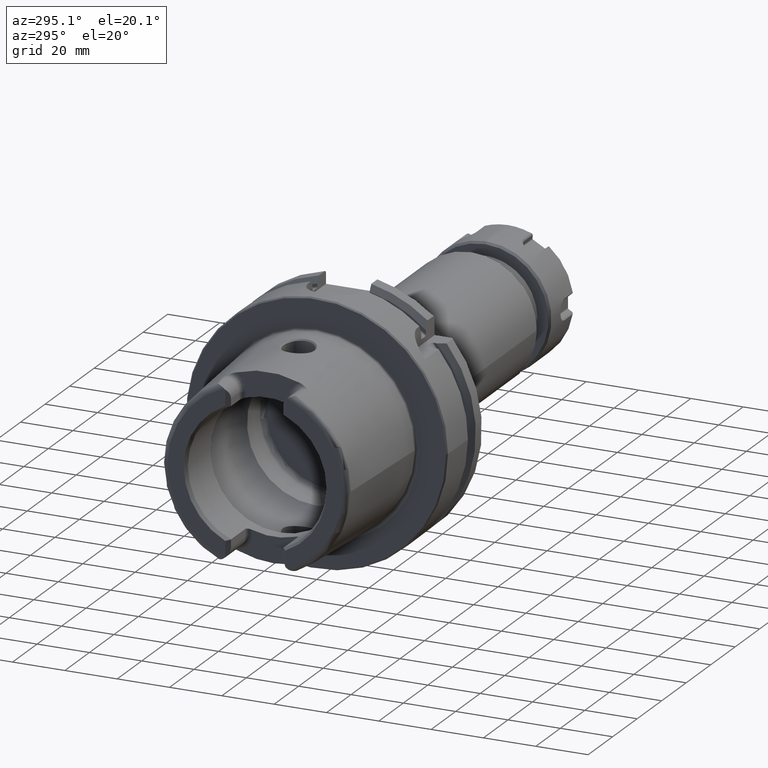
[diagram: clean part render]
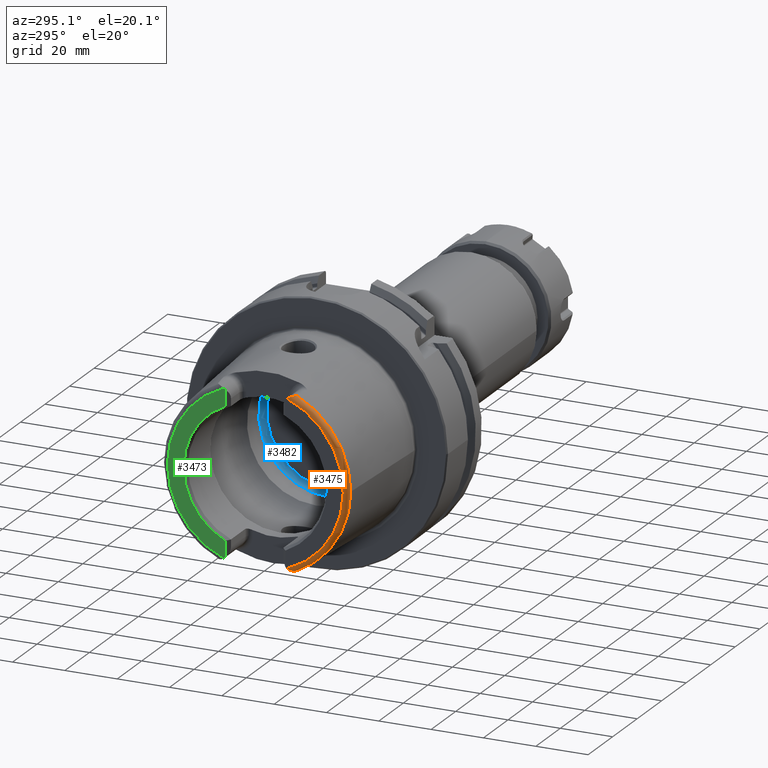
[diagram: same view with three faces highlighted in distinct colors, each labeled with its STEP entity id]
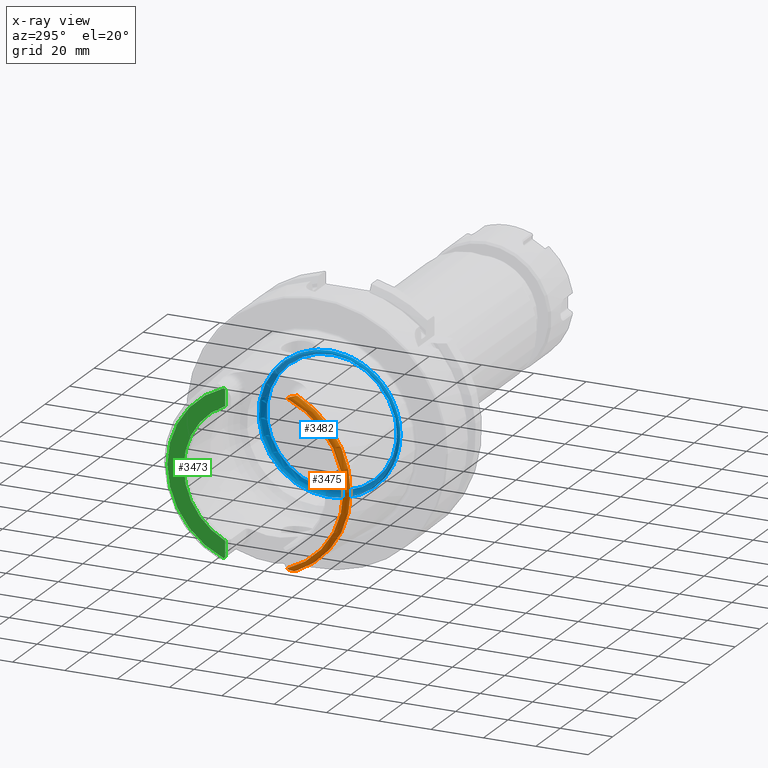
[diagram: x-ray of the same camera — body ghosted, the three highlighted faces saturated]
A machine part, auxiliary view with three faces highlighted in distinct colors.
The next image is the same camera in x-ray (body ghosted, the three faces saturated) — at least one of them is partly hidden behind the body in this view.
Their STEP definitions:

[orange] entity #3475 — the highlighted toroidal blend (fillet) surface has major radius 33.6002 mm and minor (blend) radius 2 mm.
#142=B_SPLINE_CURVE_WITH_KNOTS('',3,(#5247,#5248,#5249,#5250,#5251,#5252,
#5253,#5254,#5255,#5256,#5257,#5258),.UNSPECIFIED.,.F.,.F.,(4,2,2,2,2,4),
(-0.330531435638015,-0.267908000768776,-0.159978118105109,-0.0786368985358203,
-0.0319888850382474,0.),.UNSPECIFIED.);
#143=B_SPLINE_CURVE_WITH_KNOTS('',3,(#5283,#5284,#5285,#5286,#5287,#5288,
#5289,#5290,#5291,#5292,#5293,#5294),.UNSPECIFIED.,.F.,.F.,(4,2,2,2,2,4),
(-0.744571126726488,-0.701342830888658,-0.656522678464695,-0.531122919946982,
-0.40678456724179,-0.320835419118985),.UNSPECIFIED.);
#401=TOROIDAL_SURFACE('',#3865,33.6001839277785,2.);
#511=FACE_OUTER_BOUND('',#722,.T.);
#722=EDGE_LOOP('',(#2789,#2790,#2791,#2792,#2793));
#1263=CIRCLE('',#3739,35.5976786130245);
#1267=CIRCLE('',#3743,35.5976786130245);
#1329=CIRCLE('',#3866,33.6001839277785);
#1470=VERTEX_POINT('',#5227);
#1471=VERTEX_POINT('',#5246);
#1479=VERTEX_POINT('',#5280);
#1480=VERTEX_POINT('',#5282);
#1495=VERTEX_POINT('',#5501);
#1820=EDGE_CURVE('',#1471,#1470,#142,.T.);
#1832=EDGE_CURVE('',#1480,#1479,#143,.T.);
#1852=EDGE_CURVE('',#1495,#1470,#1263,.T.);
#1864=EDGE_CURVE('',#1480,#1495,#1267,.T.);
#2031=EDGE_CURVE('',#1479,#1471,#1329,.T.);
#2789=ORIENTED_EDGE('',*,*,#1832,.T.);
#2790=ORIENTED_EDGE('',*,*,#2031,.T.);
#2791=ORIENTED_EDGE('',*,*,#1820,.T.);
#2792=ORIENTED_EDGE('',*,*,#1852,.F.);
#2793=ORIENTED_EDGE('',*,*,#1864,.F.);
#3475=ADVANCED_FACE('',(#511),#401,.T.);
#3739=AXIS2_PLACEMENT_3D('',#5503,#4259,#4260);
#3743=AXIS2_PLACEMENT_3D('',#5611,#4267,#4268);
#3865=AXIS2_PLACEMENT_3D('',#6494,#4567,#4568);
#3866=AXIS2_PLACEMENT_3D('',#6495,#4569,#4570);
#4259=DIRECTION('center_axis',(1.,0.,0.));
#4260=DIRECTION('ref_axis',(0.,0.,-1.));
#4267=DIRECTION('center_axis',(1.,0.,0.));
#4268=DIRECTION('ref_axis',(0.,0.,-1.));
#4567=DIRECTION('center_axis',(1.,0.,0.));
#4568=DIRECTION('ref_axis',(0.,0.,-1.));
#4569=DIRECTION('center_axis',(1.,0.,0.));
#4570=DIRECTION('ref_axis',(0.,0.,-1.));
#5227=CARTESIAN_POINT('',(-48.1000748840304,-15.0787152148571,-32.2463497175327));
#5246=CARTESIAN_POINT('',(-50.,-12.0743049948301,-31.355757348091));
#5247=CARTESIAN_POINT('Ctrl Pts',(-50.,-12.0743049948301,-31.355757348091));
#5248=CARTESIAN_POINT('Ctrl Pts',(-50.,-12.285838123051,-31.5051926299063));
#5249=CARTESIAN_POINT('Ctrl Pts',(-49.9653696826563,-12.5170331398668,-31.6430588255455));
#5250=CARTESIAN_POINT('Ctrl Pts',(-49.7810065498998,-13.1911222585012,-31.9692156023965));
#5251=CARTESIAN_POINT('Ctrl Pts',(-49.5806767805336,-13.6194685503756,-32.0969374367804));
#5252=CARTESIAN_POINT('Ctrl Pts',(-49.1716377200869,-14.2730899346346,-32.2192774131036));
#5253=CARTESIAN_POINT('Ctrl Pts',(-48.9774936618895,-14.5201969661755,-32.2395201073332));
#5254=CARTESIAN_POINT('Ctrl Pts',(-48.6675943633754,-14.8125911006811,-32.2505512851489));
#5255=CARTESIAN_POINT('Ctrl Pts',(-48.5398374959923,-14.912197389574,-32.2504544601106));
#5256=CARTESIAN_POINT('Ctrl Pts',(-48.3063803700173,-15.0305209025153,-32.2482139663407));
#5257=CARTESIAN_POINT('Ctrl Pts',(-48.2058276135777,-15.0650786147019,-32.2468774553032));
#5258=CARTESIAN_POINT('Ctrl Pts',(-48.1000748840303,-15.0787152148571,-32.2463497175327));
#5280=CARTESIAN_POINT('',(-50.,-12.0743049948301,31.355757348091));
#5282=CARTESIAN_POINT('',(-48.1000748840304,-15.0787152148571,32.2463497175327));
#5283=CARTESIAN_POINT('Ctrl Pts',(-48.1000748840303,-15.078715214857,32.2463497175327));
#5284=CARTESIAN_POINT('Ctrl Pts',(-48.2106037175751,-15.0644627457708,32.2469012894916));
#5285=CARTESIAN_POINT('Ctrl Pts',(-48.3154292138325,-15.0273539899824,32.2483385926998));
#5286=CARTESIAN_POINT('Ctrl Pts',(-48.5163157198425,-14.9224481921473,32.2501843906849));
#5287=CARTESIAN_POINT('Ctrl Pts',(-48.6121978837475,-14.8534224082597,32.2504380645671));
#5288=CARTESIAN_POINT('Ctrl Pts',(-48.9452641842069,-14.5689466462259,32.2439376039327));
#5289=CARTESIAN_POINT('Ctrl Pts',(-49.1880723127851,-14.2607780319836,32.2227822574559));
#5290=CARTESIAN_POINT('Ctrl Pts',(-49.6101150709732,-13.5547183211213,32.0774653757186));
#5291=CARTESIAN_POINT('Ctrl Pts',(-49.7793847368059,-13.1765954395989,31.957165019384));
#5292=CARTESIAN_POINT('Ctrl Pts',(-49.9574602860506,-12.5580264083439,31.6658578550016));
#5293=CARTESIAN_POINT('Ctrl Pts',(-50.,-12.3091419271059,31.5216553492714));
#5294=CARTESIAN_POINT('Ctrl Pts',(-50.,-12.0743049948301,31.355757348091));
#5501=CARTESIAN_POINT('',(-48.1000748840304,-35.5976786130245,-4.35945831705167E-15));
#5503=CARTESIAN_POINT('Origin',(-48.1000748840304,0.,0.));
#5611=CARTESIAN_POINT('Origin',(-48.1000748840304,0.,0.));
#6494=CARTESIAN_POINT('Origin',(-48.,0.,0.));
#6495=CARTESIAN_POINT('Origin',(-50.,0.,0.));

[blue] entity #3482 — the highlighted toroidal blend (fillet) surface has major radius 24.9 mm and minor (blend) radius 2 mm.
#402=TOROIDAL_SURFACE('',#3878,24.9,2.);
#518=FACE_OUTER_BOUND('',#731,.T.);
#731=EDGE_LOOP('',(#2816,#2817,#2818,#2819,#2820));
#1334=CIRCLE('',#3877,24.9);
#1335=CIRCLE('',#3879,2.);
#1336=CIRCLE('',#3880,26.5);
#1337=CIRCLE('',#3881,26.5);
#1608=VERTEX_POINT('',#6510);
#1609=VERTEX_POINT('',#6513);
#1610=VERTEX_POINT('',#6515);
#2037=EDGE_CURVE('',#1608,#1608,#1334,.T.);
#2038=EDGE_CURVE('',#1608,#1609,#1335,.T.);
#2039=EDGE_CURVE('',#1609,#1610,#1336,.T.);
#2040=EDGE_CURVE('',#1610,#1609,#1337,.T.);
#2816=ORIENTED_EDGE('',*,*,#2037,.F.);
#2817=ORIENTED_EDGE('',*,*,#2038,.T.);
#2818=ORIENTED_EDGE('',*,*,#2039,.T.);
#2819=ORIENTED_EDGE('',*,*,#2040,.T.);
#2820=ORIENTED_EDGE('',*,*,#2038,.F.);
#3482=ADVANCED_FACE('',(#518),#402,.F.);
#3877=AXIS2_PLACEMENT_3D('',#6511,#4592,#4593);
#3878=AXIS2_PLACEMENT_3D('',#6512,#4594,#4595);
#3879=AXIS2_PLACEMENT_3D('',#6514,#4596,#4597);
#3880=AXIS2_PLACEMENT_3D('',#6516,#4598,#4599);
#3881=AXIS2_PLACEMENT_3D('',#6517,#4600,#4601);
#4592=DIRECTION('center_axis',(-1.,0.,0.));
#4593=DIRECTION('ref_axis',(0.,0.,1.));
#4594=DIRECTION('center_axis',(-1.,0.,0.));
#4595=DIRECTION('ref_axis',(0.,0.,1.));
#4596=DIRECTION('center_axis',(0.,1.,-1.22464679914735E-16));
#4597=DIRECTION('ref_axis',(0.,-1.22464679914735E-16,-1.));
#4598=DIRECTION('center_axis',(-1.,0.,0.));
#4599=DIRECTION('ref_axis',(0.,0.,1.));
#4600=DIRECTION('center_axis',(-1.,0.,0.));
#4601=DIRECTION('ref_axis',(0.,0.,1.));
#6510=CARTESIAN_POINT('',(12.5,-3.04937052987691E-15,-24.9));
#6511=CARTESIAN_POINT('Origin',(12.5,0.,0.));
#6512=CARTESIAN_POINT('Origin',(10.5,0.,0.));
#6513=CARTESIAN_POINT('',(9.3,-3.24531401774049E-15,-26.5));
#6514=CARTESIAN_POINT('Origin',(10.5,-3.04937052987691E-15,-24.9));
#6515=CARTESIAN_POINT('',(9.3,-26.5,3.24531401774049E-15));
#6516=CARTESIAN_POINT('Origin',(9.3,0.,0.));
#6517=CARTESIAN_POINT('Origin',(9.3,0.,0.));

[green] entity #3473 — the highlighted planar face has unit normal (-1, 0, 0).
#335=PLANE('',#3862);
#509=FACE_OUTER_BOUND('',#720,.T.);
#720=EDGE_LOOP('',(#2779,#2780,#2781,#2782,#2783,#2784));
#864=LINE('',#5162,#1052);
#880=LINE('',#5310,#1068);
#1052=VECTOR('',#4178,10.);
#1068=VECTOR('',#4238,10.);
#1252=CIRCLE('',#3712,4.88);
#1261=CIRCLE('',#3735,4.88);
#1327=CIRCLE('',#3861,27.3660254037844);
#1328=CIRCLE('',#3863,33.6001839277785);
#1451=VERTEX_POINT('',#5155);
#1454=VERTEX_POINT('',#5160);
#1457=VERTEX_POINT('',#5170);
#1483=VERTEX_POINT('',#5307);
#1484=VERTEX_POINT('',#5309);
#1489=VERTEX_POINT('',#5328);
#1801=EDGE_CURVE('',#1454,#1451,#864,.T.);
#1805=EDGE_CURVE('',#1457,#1451,#1252,.T.);
#1836=EDGE_CURVE('',#1483,#1484,#880,.T.);
#1843=EDGE_CURVE('',#1483,#1489,#1261,.T.);
#2029=EDGE_CURVE('',#1484,#1454,#1327,.T.);
#2030=EDGE_CURVE('',#1457,#1489,#1328,.T.);
#2779=ORIENTED_EDGE('',*,*,#1801,.F.);
#2780=ORIENTED_EDGE('',*,*,#2029,.F.);
#2781=ORIENTED_EDGE('',*,*,#1836,.F.);
#2782=ORIENTED_EDGE('',*,*,#1843,.T.);
#2783=ORIENTED_EDGE('',*,*,#2030,.F.);
#2784=ORIENTED_EDGE('',*,*,#1805,.T.);
#3473=ADVANCED_FACE('',(#509),#335,.T.);
#3712=AXIS2_PLACEMENT_3D('',#5171,#4186,#4187);
#3735=AXIS2_PLACEMENT_3D('',#5341,#4247,#4248);
#3861=AXIS2_PLACEMENT_3D('',#6490,#4559,#4560);
#3862=AXIS2_PLACEMENT_3D('',#6491,#4561,#4562);
#3863=AXIS2_PLACEMENT_3D('',#6492,#4563,#4564);
#4178=DIRECTION('',(0.,0.,-1.));
#4186=DIRECTION('center_axis',(-1.,0.,0.));
#4187=DIRECTION('ref_axis',(0.,-0.477884921181368,0.878422450821629));
#4238=DIRECTION('',(0.,0.,-1.));
#4247=DIRECTION('center_axis',(-1.,0.,0.));
#4248=DIRECTION('ref_axis',(0.,1.,0.));
#4559=DIRECTION('center_axis',(-1.,0.,0.));
#4560=DIRECTION('ref_axis',(0.,-1.,0.));
#4561=DIRECTION('center_axis',(-1.,0.,0.));
#4562=DIRECTION('ref_axis',(0.,0.,1.));
#4563=DIRECTION('center_axis',(1.,0.,0.));
#4564=DIRECTION('ref_axis',(0.,0.,-1.));
#5155=CARTESIAN_POINT('',(-50.,11.51,-30.8899431813596));
#5160=CARTESIAN_POINT('',(-50.,11.51,-24.8277918148307));
#5162=CARTESIAN_POINT('',(-50.,11.51,-10.));
#5170=CARTESIAN_POINT('',(-50.,12.0743049948301,-31.355757348091));
#5171=CARTESIAN_POINT('Origin',(-50.,14.89,-27.37));
#5307=CARTESIAN_POINT('',(-50.,11.51,30.8899431813596));
#5309=CARTESIAN_POINT('',(-50.,11.51,24.8277918148307));
#5310=CARTESIAN_POINT('',(-50.,11.51,13.685));
#5328=CARTESIAN_POINT('',(-50.,12.0743049948301,31.355757348091));
#5341=CARTESIAN_POINT('Origin',(-50.,14.89,27.37));
#6490=CARTESIAN_POINT('Origin',(-50.,0.,0.));
#6491=CARTESIAN_POINT('Origin',(-50.,33.6001839277785,0.));
#6492=CARTESIAN_POINT('Origin',(-50.,0.,0.));